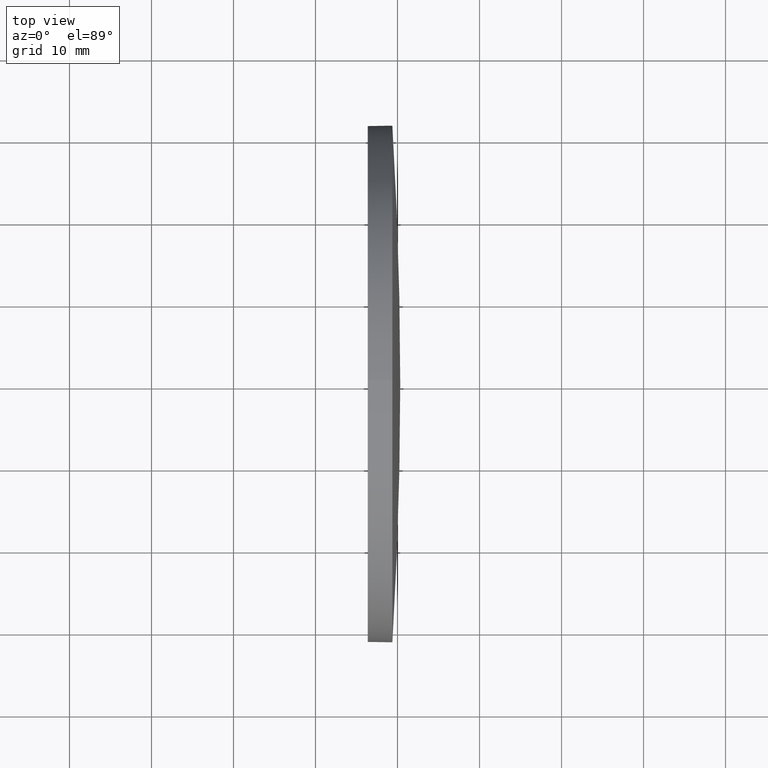
[diagram: clean part render]
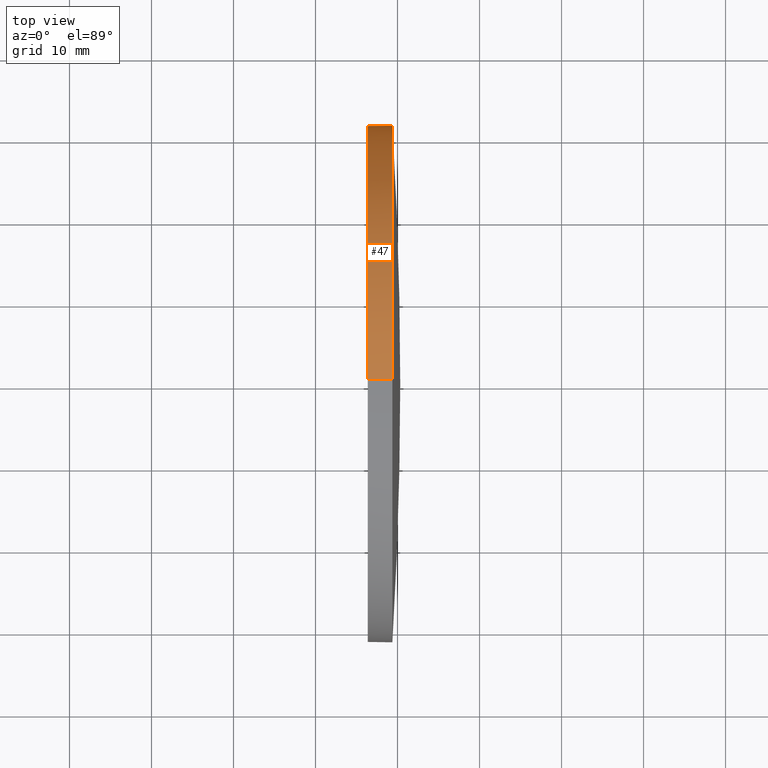
[diagram: same view with one face highlighted and labeled with its STEP entity id]
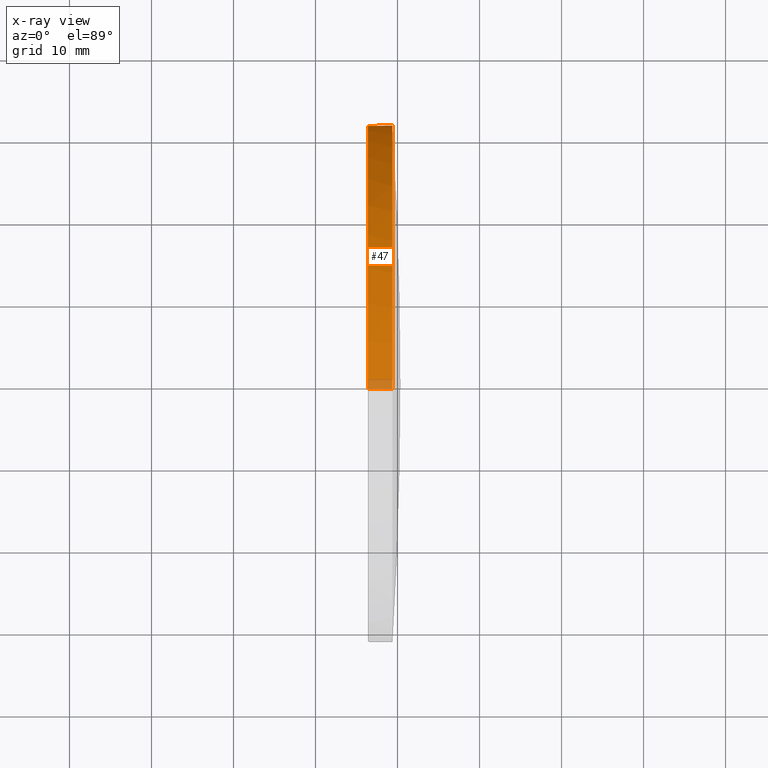
[diagram: x-ray of the same camera — body ghosted, the highlighted face saturated]
A machine part, top view. The second image highlights one B-rep face of the part: STEP entity #47.
The next image is the same camera in x-ray: the body ghosted, the highlighted face saturated — about 3% of this face is hidden behind the body in this view.
In plain terms, the highlighted cylindrical surface (partial cylindrical patch) has radius 31.5 mm, axis along (-1, -0, -0).
Its self-contained STEP definition (entity closure, byte-faithful):
#12 = AXIS2_PLACEMENT_3D ( 'NONE', #21, #59, #168 ) ;
#13 = DIRECTION ( 'NONE',  ( -1.000000000000000000, -0.0000000000000000000, -0.0000000000000000000 ) ) ;
#16 = ORIENTED_EDGE ( 'NONE', *, *, #114, .F. ) ;
#17 = AXIS2_PLACEMENT_3D ( 'NONE', #37, #121, #94 ) ;
#19 = FACE_OUTER_BOUND ( 'NONE', #24, .T. ) ;
#21 = CARTESIAN_POINT ( 'NONE',  ( 217.3311486608872700, 130.0418907599245100, 0.0000000000000000000 ) ) ;
#24 = EDGE_LOOP ( 'NONE', ( #32, #144, #16, #126, #186 ) ) ;
#27 = CARTESIAN_POINT ( 'NONE',  ( 236.3701037227096700, 130.0418907599245100, 0.0000000000000000000 ) ) ;
#30 = CIRCLE ( 'NONE', #64, 31.50000000000000000 ) ;
#32 = ORIENTED_EDGE ( 'NONE', *, *, #107, .T. ) ;
#34 = VERTEX_POINT ( 'NONE', #166 ) ;
#36 = CARTESIAN_POINT ( 'NONE',  ( 239.3701037227097000, 161.5418907599244300, 3.857637417314121700E-015 ) ) ;
#37 = CARTESIAN_POINT ( 'NONE',  ( 239.3701037227096700, 130.0418907599245100, 0.0000000000000000000 ) ) ;
#47 = ADVANCED_FACE ( 'NONE', ( #19 ), #182, .T. ) ;
#59 = DIRECTION ( 'NONE',  ( -1.000000000000000000, -0.0000000000000000000, -0.0000000000000000000 ) ) ;
#63 = CARTESIAN_POINT ( 'NONE',  ( 239.3701037227096700, 130.0418907599245100, 0.0000000000000000000 ) ) ;
#64 = AXIS2_PLACEMENT_3D ( 'NONE', #27, #137, #153 ) ;
#66 = DIRECTION ( 'NONE',  ( -1.000000000000000000, -0.0000000000000000000, -0.0000000000000000000 ) ) ;
#71 = VECTOR ( 'NONE', #13, 1000.000000000000000 ) ;
#73 = VERTEX_POINT ( 'NONE', #102 ) ;
#74 = CARTESIAN_POINT ( 'NONE',  ( 217.3311486608872700, 130.0418907599245100, 31.50000000000000000 ) ) ;
#76 = DIRECTION ( 'NONE',  ( 0.0000000000000000000, 0.0000000000000000000, 1.000000000000000000 ) ) ;
#81 = VECTOR ( 'NONE', #66, 1000.000000000000000 ) ;
#82 = AXIS2_PLACEMENT_3D ( 'NONE', #63, #180, #76 ) ;
#84 = VERTEX_POINT ( 'NONE', #36 ) ;
#85 = LINE ( 'NONE', #74, #81 ) ;
#86 = EDGE_CURVE ( 'NONE', #143, #183, #85, .T. ) ;
#94 = DIRECTION ( 'NONE',  ( 0.0000000000000000000, 0.0000000000000000000, 1.000000000000000000 ) ) ;
#102 = CARTESIAN_POINT ( 'NONE',  ( 236.3701037227096700, 130.0418907599245100, -31.50000000000000000 ) ) ;
#107 = EDGE_CURVE ( 'NONE', #84, #34, #109, .T. ) ;
#109 = CIRCLE ( 'NONE', #82, 31.50000000000000000 ) ;
#110 = EDGE_CURVE ( 'NONE', #143, #84, #155, .T. ) ;
#114 = EDGE_CURVE ( 'NONE', #183, #73, #30, .T. ) ;
#121 = DIRECTION ( 'NONE',  ( -1.000000000000000000, -0.0000000000000000000, -0.0000000000000000000 ) ) ;
#126 = ORIENTED_EDGE ( 'NONE', *, *, #86, .F. ) ;
#129 = EDGE_CURVE ( 'NONE', #34, #73, #142, .T. ) ;
#136 = CARTESIAN_POINT ( 'NONE',  ( 217.3311486608872700, 130.0418907599245100, -31.50000000000000000 ) ) ;
#137 = DIRECTION ( 'NONE',  ( -1.000000000000000000, -0.0000000000000000000, -0.0000000000000000000 ) ) ;
#142 = LINE ( 'NONE', #136, #71 ) ;
#143 = VERTEX_POINT ( 'NONE', #171 ) ;
#144 = ORIENTED_EDGE ( 'NONE', *, *, #129, .T. ) ;
#153 = DIRECTION ( 'NONE',  ( 0.0000000000000000000, 0.0000000000000000000, 1.000000000000000000 ) ) ;
#155 = CIRCLE ( 'NONE', #17, 31.50000000000000000 ) ;
#166 = CARTESIAN_POINT ( 'NONE',  ( 239.3701037227096700, 130.0418907599245100, -31.50000000000000000 ) ) ;
#168 = DIRECTION ( 'NONE',  ( 0.0000000000000000000, 0.0000000000000000000, 1.000000000000000000 ) ) ;
#171 = CARTESIAN_POINT ( 'NONE',  ( 239.3701037227096700, 130.0418907599245100, 31.50000000000000000 ) ) ;
#180 = DIRECTION ( 'NONE',  ( -1.000000000000000000, -0.0000000000000000000, -0.0000000000000000000 ) ) ;
#181 = CARTESIAN_POINT ( 'NONE',  ( 236.3701037227096700, 130.0418907599245100, 31.50000000000000000 ) ) ;
#182 = CYLINDRICAL_SURFACE ( 'NONE', #12, 31.50000000000000000 ) ;
#183 = VERTEX_POINT ( 'NONE', #181 ) ;
#186 = ORIENTED_EDGE ( 'NONE', *, *, #110, .T. ) ;